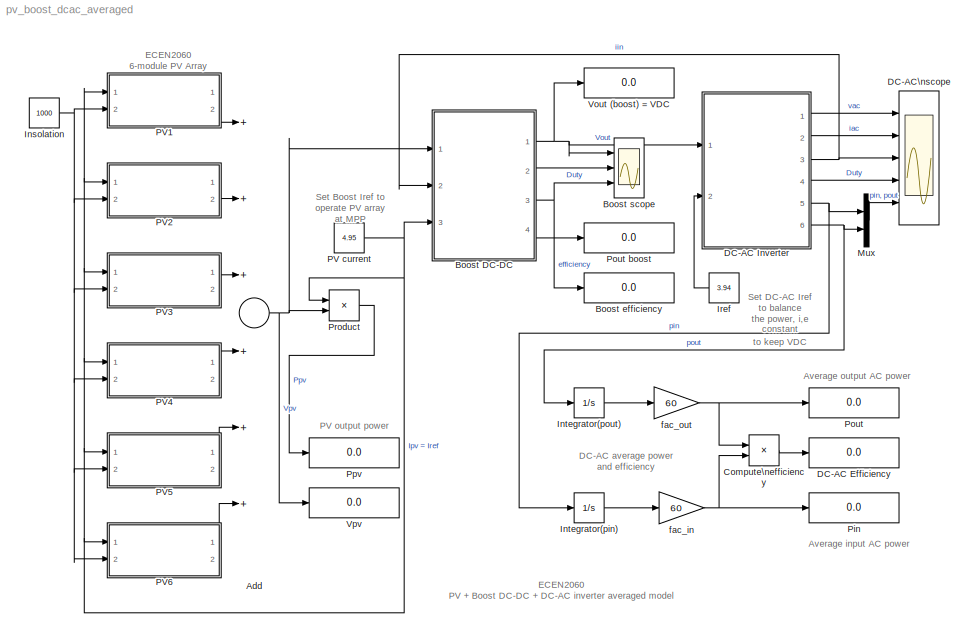
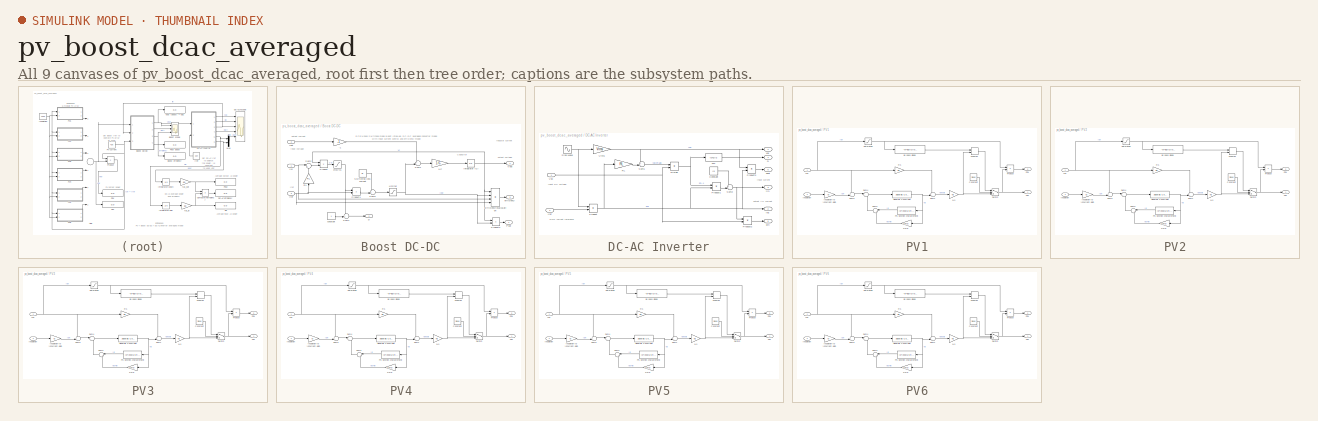
[diagram: thumbnail index - all 9 canvases of the model, root first then tree order]
MODEL pv_boost_dcac_averaged
KIND model
BLOCK [Sum] Add
  InputSameDT = off
  Inputs = ++++++
  OutDataTypeMode = Inherit via internal rule
  OutScaling = 2^-10
  Ports = [6, 1]
  SaturateOnIntegerOverflow = off
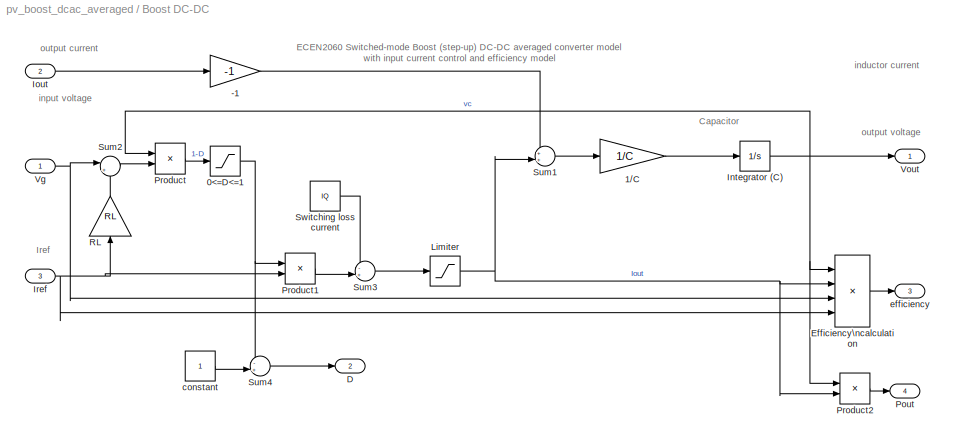
BLOCK [SubSystem] Boost DC-DC
  FunctionWithSeparateData = off
  MaskCallbackString = |||
  MaskDescription = Averaged model of a boost (step-up) DC-DC converter with input current control. Model includes losses due to input port resistance and output-port switching-loss current.
  MaskDisplay = text(0.5,0.9,'Boost','horizontalAlignment', 'center');\ntext(0.5,0.8,'DC-DC','horizontalAlignment', 'center');\ntext(0.5,0.7,'(averaged, C)','horizontalAlignment', 'center');\ntext(0.5,0.6,'current control','horizontalAlignment', 'center');
  MaskEnableString = on,on,on,on
  MaskHideContents = off
  MaskIconFrame = on
  MaskIconOpaque = off
  MaskIconRotate = none
  MaskIconUnits = normalized
  MaskPromptString = Capacitance|Initial capacitor voltage|Input port series resistance|Switching loss current
  MaskStyleString = edit,edit,edit,edit
  MaskTabNameString = ,,,
  MaskToolTipString = on,on,on,on
  MaskTunableValueString = on,on,on,on
  MaskValueString = 200e-6|200|0.5|0.03
  MaskVarAliasString = ,,,
  MaskVariables = C=@1;Vo=@2;RL=@3;IQ=@4;
  MaskVisibilityString = on,on,on,on
  MinAlgLoopOccurrences = off
  Ports = [3, 4]
  RTWSystemCode = Auto
BLOCK [Gain] Boost DC-DC/-1
  Gain = -1
  OutDataTypeMode = Inherit via internal rule
  ParameterDataTypeMode = Inherit via internal rule
  SaturateOnIntegerOverflow = off
BLOCK [Saturate] Boost DC-DC/0<=D<=1
  LowerLimit = 0
  UpperLimit = 1
BLOCK [Gain] Boost DC-DC/1//C
  Gain = 1/C
  OutDataTypeMode = Inherit via internal rule
  ParameterDataTypeMode = Inherit via internal rule
  SaturateOnIntegerOverflow = off
BLOCK [Outport] Boost DC-DC/D
  BusOutputAsStruct = off
  IconDisplay = Port number
  Port = 2
BLOCK [Product] Boost DC-DC/Efficiency\ncalculation
  InputSameDT = off
  Inputs = **//
  OutDataTypeMode = Inherit via internal rule
  Ports = [4, 1]
  SaturateOnIntegerOverflow = off
BLOCK [Integrator] Boost DC-DC/Integrator (C)
  IgnoreLimit = off
  InitialCondition = Vo
  Ports = [1, 1]
BLOCK [Inport] Boost DC-DC/Iout
  IconDisplay = Port number
  Port = 2
BLOCK [Inport] Boost DC-DC/Iref
  IconDisplay = Port number
  Port = 3
BLOCK [Saturate] Boost DC-DC/Limiter
  LowerLimit = 0
  UpperLimit = inf
BLOCK [Outport] Boost DC-DC/Pout
  BusOutputAsStruct = off
  IconDisplay = Port number
  Port = 4
BLOCK [Product] Boost DC-DC/Product
  InputSameDT = off
  Inputs = /*
  OutDataTypeMode = Inherit via internal rule
  Ports = [2, 1]
  SaturateOnIntegerOverflow = off
BLOCK [Product] Boost DC-DC/Product1
  InputSameDT = off
  Inputs = **
  OutDataTypeMode = Inherit via internal rule
  Ports = [2, 1]
  SaturateOnIntegerOverflow = off
BLOCK [Product] Boost DC-DC/Product2
  InputSameDT = off
  Inputs = **
  OutDataTypeMode = Inherit via internal rule
  Ports = [2, 1]
  SaturateOnIntegerOverflow = off
BLOCK [Gain] Boost DC-DC/RL
  Gain = RL
  OutDataTypeMode = Inherit via internal rule
  ParameterDataTypeMode = Inherit via internal rule
  SaturateOnIntegerOverflow = off
BLOCK [Sum] Boost DC-DC/Sum1
  IconShape = round
  InputSameDT = off
  Inputs = ++|
  OutDataTypeMode = Inherit via internal rule
  Ports = [2, 1]
  SaturateOnIntegerOverflow = off
BLOCK [Sum] Boost DC-DC/Sum2
  IconShape = round
  InputSameDT = off
  Inputs = |+-
  OutDataTypeMode = Inherit via internal rule
  Ports = [2, 1]
  SaturateOnIntegerOverflow = off
BLOCK [Sum] Boost DC-DC/Sum3
  IconShape = round
  InputSameDT = off
  Inputs = -+|
  OutDataTypeMode = Inherit via internal rule
  Ports = [2, 1]
  SaturateOnIntegerOverflow = off
BLOCK [Sum] Boost DC-DC/Sum4
  IconShape = round
  InputSameDT = off
  Inputs = -+|
  OutDataTypeMode = Inherit via internal rule
  Ports = [2, 1]
  SaturateOnIntegerOverflow = off
BLOCK [Constant] Boost DC-DC/Switching loss current
  ConRadixGroup = Use specified scaling
  FramePeriod = inf
  OutDataType = sfix(16)
  OutDataTypeMode = Inherit from 'Constant value'
  OutScaling = 2^0
  SampleTime = inf
  SamplingMode = Sample based
  Value = IQ
  VectorParams1D = on
BLOCK [Inport] Boost DC-DC/Vg
  IconDisplay = Port number
BLOCK [Outport] Boost DC-DC/Vout
  BusOutputAsStruct = off
  IconDisplay = Port number
BLOCK [Constant] Boost DC-DC/constant
  ConRadixGroup = Use specified scaling
  FramePeriod = inf
  OutDataType = sfix(16)
  OutDataTypeMode = Inherit from 'Constant value'
  OutScaling = 2^0
  SampleTime = inf
  SamplingMode = Sample based
  Value = 1
  VectorParams1D = on
BLOCK [Outport] Boost DC-DC/efficiency
  BusOutputAsStruct = off
  IconDisplay = Port number
  Port = 3
BLOCK [Display] Boost efficiency
  Decimation = 1
  Lockdown = off
  Ports = [1]
BLOCK [Scope] Boost scope
  DataFormat = StructureWithTime
  Floating = off
  LimitDataPoints = off
  NumInputPorts = 3
  Ports = [3]
  SampleTime = 0
  SaveName = ScopeData1
  TimeRange = 0.018
  YMax = 220~0.6000000000000001~0.967
  YMin = 180~0.4~0.963
  ZoomMode = yonly
BLOCK [Product] Compute\nefficiency
  InputSameDT = off
  Inputs = */
  OutDataTypeMode = Inherit via internal rule
  OutScaling = 2^-10
  Ports = [2, 1]
  RndMeth = Floor
  SaturateOnIntegerOverflow = off
BLOCK [Display] DC-AC Efficiency
  Decimation = 1
  Lockdown = off
  Ports = [1]
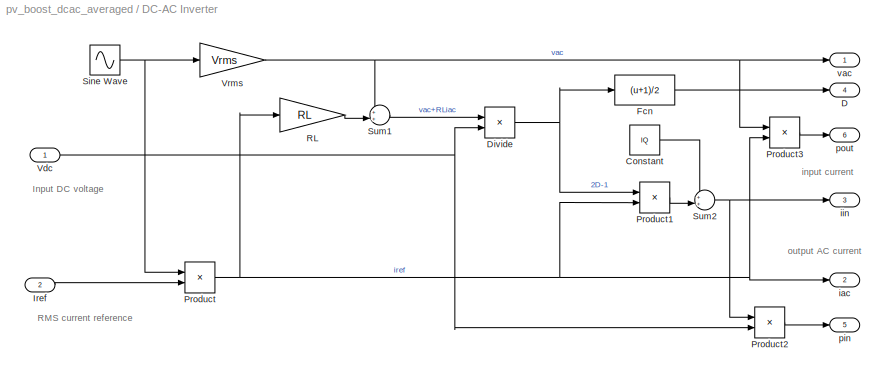
BLOCK [SubSystem] DC-AC Inverter
  FunctionWithSeparateData = off
  MaskCallbackString = |||
  MaskDescription = Averaged model of a switched-mode DC-AC inverter for single-phase grid-connected systems. Output current is in phase with the AC line voltage and has the RMS value set by the input reference Iref. Conduction losses are modeled by an output por series resistance. Switching losses are modeled by an input port current Isw.
  MaskDisplay = text(0.5,0.75,'DC-AC','horizontalAlignment', 'center');\ntext(0.5,0.6,'inverter','horizontalAlignment', 'center');\ntext(0.5,0.45,'(averaged)','horizontalAlignment', 'center');
  MaskEnableString = on,on,on,on
  MaskHideContents = off
  MaskIconFrame = on
  MaskIconOpaque = off
  MaskIconRotate = none
  MaskIconUnits = normalized
  MaskPromptString = AC line RMS voltage|AC line frequency|Output port series resistance|Switching loss current
  MaskStyleString = edit,edit,edit,edit
  MaskTabNameString = ,,,
  MaskToolTipString = on,on,on,on
  MaskTunableValueString = on,on,on,on
  MaskValueString = 120|60|0.8|0.04
  MaskVarAliasString = ,,,
  MaskVariables = Vrms=@1;f=@2;RL=@3;IQ=@4;
  MaskVisibilityString = on,on,on,on
  MinAlgLoopOccurrences = off
  Ports = [2, 6]
  RTWSystemCode = Auto
BLOCK [Constant] DC-AC Inverter/Constant
  ConRadixGroup = Use specified scaling
  FramePeriod = inf
  OutDataType = sfix(16)
  OutDataTypeMode = Inherit from 'Constant value'
  OutScaling = 2^0
  SampleTime = inf
  SamplingMode = Sample based
  Value = IQ
  VectorParams1D = on
BLOCK [Outport] DC-AC Inverter/D
  BusOutputAsStruct = off
  IconDisplay = Port number
  Port = 4
BLOCK [Product] DC-AC Inverter/Divide
  InputSameDT = off
  Inputs = */
  OutDataTypeMode = Inherit via internal rule
  OutScaling = 2^-10
  Ports = [2, 1]
  RndMeth = Floor
  SaturateOnIntegerOverflow = off
BLOCK [Fcn] DC-AC Inverter/Fcn
  Expr = (u+1)/2
BLOCK [Inport] DC-AC Inverter/Iref
  IconDisplay = Port number
  Port = 2
BLOCK [Product] DC-AC Inverter/Product
  InputSameDT = off
  OutDataTypeMode = Inherit via internal rule
  Ports = [2, 1]
  SaturateOnIntegerOverflow = off
BLOCK [Product] DC-AC Inverter/Product1
  InputSameDT = off
  OutDataTypeMode = Inherit via internal rule
  Ports = [2, 1]
  SaturateOnIntegerOverflow = off
BLOCK [Product] DC-AC Inverter/Product2
  InputSameDT = off
  OutDataTypeMode = Inherit via internal rule
  Ports = [2, 1]
  SaturateOnIntegerOverflow = off
BLOCK [Product] DC-AC Inverter/Product3
  InputSameDT = off
  OutDataTypeMode = Inherit via internal rule
  Ports = [2, 1]
  SaturateOnIntegerOverflow = off
BLOCK [Gain] DC-AC Inverter/RL
  Gain = RL
  OutDataTypeMode = Inherit via internal rule
  ParameterDataTypeMode = Inherit via internal rule
  SaturateOnIntegerOverflow = off
BLOCK [Sin] DC-AC Inverter/Sine Wave
  Amplitude = 1*sqrt(2)
  Frequency = 2*pi*f
  Ports = [0, 1]
  SampleTime = 0
  SineType = Time based
BLOCK [Sum] DC-AC Inverter/Sum1
  IconShape = round
  InputSameDT = off
  Inputs = ++|
  OutDataTypeMode = Inherit via internal rule
  Ports = [2, 1]
  SaturateOnIntegerOverflow = off
BLOCK [Sum] DC-AC Inverter/Sum2
  IconShape = round
  InputSameDT = off
  Inputs = ++|
  OutDataTypeMode = Inherit via internal rule
  Ports = [2, 1]
  SaturateOnIntegerOverflow = off
BLOCK [Inport] DC-AC Inverter/Vdc
  IconDisplay = Port number
BLOCK [Gain] DC-AC Inverter/Vrms
  Gain = Vrms
  OutDataTypeMode = Inherit via internal rule
  ParameterDataTypeMode = Inherit via internal rule
  SaturateOnIntegerOverflow = off
BLOCK [Outport] DC-AC Inverter/iac
  BusOutputAsStruct = off
  IconDisplay = Port number
  Port = 2
BLOCK [Outport] DC-AC Inverter/iin
  BusOutputAsStruct = off
  IconDisplay = Port number
  Port = 3
BLOCK [Outport] DC-AC Inverter/pin
  BusOutputAsStruct = off
  IconDisplay = Port number
  Port = 5
BLOCK [Outport] DC-AC Inverter/pout
  BusOutputAsStruct = off
  IconDisplay = Port number
  Port = 6
BLOCK [Outport] DC-AC Inverter/vac
  BusOutputAsStruct = off
  IconDisplay = Port number
BLOCK [Scope] DC-AC\nscope
  DataFormat = StructureWithTime
  Floating = off
  LimitDataPoints = off
  NumInputPorts = 5
  Ports = [5]
  SampleTime = 0
  TimeRange = 0.018
  YMax = 200~10~5~1~1000
  YMin = -200~-10~0~0~0
  ZoomMode = xonly
BLOCK [Constant] Insolation
  ConRadixGroup = Use specified scaling
  FramePeriod = inf
  OutDataType = sfix(16)
  OutDataTypeMode = Inherit from 'Constant value'
  OutScaling = 2^0
  SampleTime = inf
  SamplingMode = Sample based
  Value = 1000
  VectorParams1D = on
BLOCK [Integrator] Integrator(pin)
  IgnoreLimit = off
  Ports = [1, 1]
BLOCK [Integrator] Integrator(pout)
  IgnoreLimit = off
  Ports = [1, 1]
BLOCK [Constant] Iref
  ConRadixGroup = Use specified scaling
  FramePeriod = inf
  OutDataType = sfix(16)
  OutDataTypeMode = Inherit from 'Constant value'
  OutScaling = 2^0
  SampleTime = inf
  SamplingMode = Sample based
  Value = 3.94
  VectorParams1D = on
BLOCK [Mux] Mux
  DisplayOption = bar
  Inputs = 2
  Ports = [2, 1]
BLOCK [Constant] PV current
  ConRadixGroup = Use specified scaling
  FramePeriod = inf
  OutDataType = sfix(16)
  OutDataTypeMode = Inherit from 'Constant value'
  OutScaling = 2^0
  SampleTime = inf
  SamplingMode = Sample based
  Value = 4.95
  VectorParams1D = on
BLOCK [SubSystem] PV1
  FunctionWithSeparateData = off
  MaskCallbackString = ||||
  MaskDescription = PV module model based on module data-sheet parameters. This model has Ipv input, which is suitable for series connections. Limitations: no temperature dependance, static model
  MaskDisplay = plot([0.3 0.4],[0.4 0.8]);\nplot([0.4 0.5],[0.4 0.8]);\nplot([0.5 0.6],[0.4 0.8]);\nplot([0.6 0.7],[0.4 0.8]);\nplot([0.3 0.6],[0.4 0.4]);\nplot([0.325 0.625],[0.5 0.5]);\nplot([0.35 0.65],[0.6 0.6]);\nplot([0.375 0.675],[0.7 0.7]);\nplot([0.4 0.7],[0.8 0.8]);\ntext(0.5,0.9,'PV module (I)','horizontalAlignment', 'center');\n  <repeated x6 — deduplicated; at blocks: PV1, PV2, PV3, PV4, PV5, PV6>
  MaskEnableString = on,on,on,on,on
  MaskHideContents = off
  MaskIconFrame = on
  MaskIconOpaque = off
  MaskIconRotate = none
  MaskIconUnits = normalized
  MaskInitialization = % calculation of PV module parameters\n% limitation: constant temperature\nNs = round(Voc/0.61); % default number of cells in series\nVt = 26e-3; % thermal voltage\nG = Isc/1000; % irradiation to short-circuit current gain\nVmpc = Vr/Ns; % cell voltage at rated Pmax\nVocc = Voc/Ns; % cell open-circuit voltage\nRmpp = Vmpc/Ir; % cell load resistance at Pmax\n%\nRp = 100*Vocc/Isc; % initial value fo...<+575ch>  <repeated x6 — deduplicated; at blocks: PV1, PV2, PV3, PV4, PV5, PV6>
  MaskPromptString = Short-circuit current|Open-circuit voltage|Current at Pmax|Voltage at Pmax|By-pass diode?
  MaskStyleString = edit,edit,edit,edit,checkbox
  MaskTabNameString = ,,,,
  MaskToolTipString = on,on,on,on,on
  MaskTunableValueString = on,on,on,on,on
  MaskValueString = 5.45|22.2|4.95|17.2|on
  MaskVarAliasString = ,,,,
  MaskVariables = Isc=@1;Voc=@2;Ir=@3;Vr=@4;Diode=@5;
  MaskVisibilityString = on,on,on,on,on
  MinAlgLoopOccurrences = off
  Ports = [2, 2]
  RTWSystemCode = Auto
BLOCK [Gain] PV1/1//Rp
  Gain = 1/Rp
  OutDataTypeMode = Inherit via internal rule
  ParameterDataTypeMode = Inherit via internal rule
  SaturateOnIntegerOverflow = off
BLOCK [Reference] PV1/Algebraic Constraint  REF=simulink/Math\nOperations/Algebraic Constraint
  FunctionWithSeparateData = off
  Ports = [1, 1]
  RTWMemSecDataConstants = Inherit from model
  RTWMemSecDataInternal = Inherit from model
  RTWMemSecDataParameters = Inherit from model
  RTWMemSecFuncExecute = Inherit from model
  RTWMemSecFuncInitTerm = Inherit from model
  ShowPortLabels = on
  SourceBlock = simulink/Math\nOperations/Algebraic Constraint
  SourceType = Algebraic Constraint
  SystemSampleTime = -1
  z0 = 0
BLOCK [Fcn] PV1/By-pass diode
  Expr = -Vt*log((u/Io)+1)
BLOCK [Constant] PV1/Constant
  ConRadixGroup = Use specified scaling
  FramePeriod = inf
  OutDataType = sfix(16)
  OutDataTypeMode = Inherit from 'Constant value'
  OutScaling = 2^0
  SampleTime = inf
  SamplingMode = Sample based
  Value = Diode
  VectorParams1D = on
BLOCK [Inport] PV1/Insolation
  IconDisplay = Port number
  Port = 2
BLOCK [Gain] PV1/Insolation to \ncurrent gain
  Gain = G
  OutDataTypeMode = Inherit via internal rule
  ParameterDataTypeMode = Inherit via internal rule
  SaturateOnIntegerOverflow = off
BLOCK [Inport] PV1/Ipv
  IconDisplay = Port number
BLOCK [MinMax] PV1/MinMax
  Function = max
  InputSameDT = off
  Inputs = 2
  Ports = [2, 1]
  SaturateOnIntegerOverflow = off
BLOCK [Gain] PV1/Ns
  Gain = Ns
  OutDataTypeMode = Inherit via internal rule
  ParameterDataTypeMode = Inherit via internal rule
  SaturateOnIntegerOverflow = off
BLOCK [Fcn] PV1/PN-junction characteristic
  Expr = Io*(exp(u/Vt)-1)
BLOCK [Outport] PV1/Ppv
  BusOutputAsStruct = off
  IconDisplay = Port number
  Port = 2
BLOCK [Product] PV1/Product
  InputSameDT = off
  OutDataTypeMode = Inherit via internal rule
  Ports = [2, 1]
  SaturateOnIntegerOverflow = off
BLOCK [Gain] PV1/Rs
  Gain = Rs
  OutDataTypeMode = Inherit via internal rule
  ParameterDataTypeMode = Inherit via internal rule
  SaturateOnIntegerOverflow = off
BLOCK [Saturate] PV1/Saturation
  LowerLimit = 0
  UpperLimit = inf
BLOCK [Sum] PV1/Sum1
  IconShape = round
  InputSameDT = off
  Inputs = -+|
  OutDataTypeMode = Inherit via internal rule
  Ports = [2, 1]
  SaturateOnIntegerOverflow = off
BLOCK [Sum] PV1/Sum2
  IconShape = round
  InputSameDT = off
  Inputs = |++
  OutDataTypeMode = Inherit via internal rule
  Ports = [2, 1]
  SaturateOnIntegerOverflow = off
BLOCK [Sum] PV1/Sum3
  IconShape = round
  InputSameDT = off
  Inputs = -+|
  OutDataTypeMode = Inherit via internal rule
  Ports = [2, 1]
  SaturateOnIntegerOverflow = off
BLOCK [Sum] PV1/Sum4
  IconShape = round
  InputSameDT = off
  Inputs = |+-
  OutDataTypeMode = Inherit via internal rule
  Ports = [2, 1]
  SaturateOnIntegerOverflow = off
BLOCK [Switch] PV1/Switch
  Criteria = u2 > Threshold
  InputSameDT = off
  SaturateOnIntegerOverflow = off
BLOCK [Outport] PV1/Vpv
  BusOutputAsStruct = off
  IconDisplay = Port number
BLOCK [SubSystem] PV2
  FunctionWithSeparateData = off
  MaskCallbackString = ||||
  MaskDescription = PV module model based on module data-sheet parameters. This model has Ipv input, which is suitable for series connections. Limitations: no temperature dependance, static model
  MaskEnableString = on,on,on,on,on
  MaskHideContents = off
  MaskIconFrame = on
  MaskIconOpaque = off
  MaskIconRotate = none
  MaskIconUnits = normalized
  MaskPromptString = Short-circuit current|Open-circuit voltage|Current at Pmax|Voltage at Pmax|By-pass diode?
  MaskStyleString = edit,edit,edit,edit,checkbox
  MaskTabNameString = ,,,,
  MaskToolTipString = on,on,on,on,on
  MaskTunableValueString = on,on,on,on,on
  MaskValueString = 5.45|22.2|4.95|17.2|on
  MaskVarAliasString = ,,,,
  MaskVariables = Isc=@1;Voc=@2;Ir=@3;Vr=@4;Diode=@5;
  MaskVisibilityString = on,on,on,on,on
  MinAlgLoopOccurrences = off
  Ports = [2, 2]
  RTWSystemCode = Auto
BLOCK [Gain] PV2/1//Rp
  Gain = 1/Rp
  OutDataTypeMode = Inherit via internal rule
  ParameterDataTypeMode = Inherit via internal rule
  SaturateOnIntegerOverflow = off
BLOCK [Reference] PV2/Algebraic Constraint  REF=simulink/Math\nOperations/Algebraic Constraint
  FunctionWithSeparateData = off
  Ports = [1, 1]
  RTWMemSecDataConstants = Inherit from model
  RTWMemSecDataInternal = Inherit from model
  RTWMemSecDataParameters = Inherit from model
  RTWMemSecFuncExecute = Inherit from model
  RTWMemSecFuncInitTerm = Inherit from model
  ShowPortLabels = on
  SourceBlock = simulink/Math\nOperations/Algebraic Constraint
  SourceType = Algebraic Constraint
  SystemSampleTime = -1
  z0 = 0
BLOCK [Fcn] PV2/By-pass diode
  Expr = -Vt*log((u/Io)+1)
BLOCK [Constant] PV2/Constant
  ConRadixGroup = Use specified scaling
  FramePeriod = inf
  OutDataType = sfix(16)
  OutDataTypeMode = Inherit from 'Constant value'
  OutScaling = 2^0
  SampleTime = inf
  SamplingMode = Sample based
  Value = Diode
  VectorParams1D = on
BLOCK [Inport] PV2/Insolation
  IconDisplay = Port number
  Port = 2
BLOCK [Gain] PV2/Insolation to \ncurrent gain
  Gain = G
  OutDataTypeMode = Inherit via internal rule
  ParameterDataTypeMode = Inherit via internal rule
  SaturateOnIntegerOverflow = off
BLOCK [Inport] PV2/Ipv
  IconDisplay = Port number
BLOCK [MinMax] PV2/MinMax
  Function = max
  InputSameDT = off
  Inputs = 2
  Ports = [2, 1]
  SaturateOnIntegerOverflow = off
BLOCK [Gain] PV2/Ns
  Gain = Ns
  OutDataTypeMode = Inherit via internal rule
  ParameterDataTypeMode = Inherit via internal rule
  SaturateOnIntegerOverflow = off
BLOCK [Fcn] PV2/PN-junction characteristic
  Expr = Io*(exp(u/Vt)-1)
BLOCK [Outport] PV2/Ppv
  BusOutputAsStruct = off
  IconDisplay = Port number
  Port = 2
BLOCK [Product] PV2/Product
  InputSameDT = off
  OutDataTypeMode = Inherit via internal rule
  Ports = [2, 1]
  SaturateOnIntegerOverflow = off
BLOCK [Gain] PV2/Rs
  Gain = Rs
  OutDataTypeMode = Inherit via internal rule
  ParameterDataTypeMode = Inherit via internal rule
  SaturateOnIntegerOverflow = off
BLOCK [Saturate] PV2/Saturation
  LowerLimit = 0
  UpperLimit = inf
BLOCK [Sum] PV2/Sum1
  IconShape = round
  InputSameDT = off
  Inputs = -+|
  OutDataTypeMode = Inherit via internal rule
  Ports = [2, 1]
  SaturateOnIntegerOverflow = off
BLOCK [Sum] PV2/Sum2
  IconShape = round
  InputSameDT = off
  Inputs = |++
  OutDataTypeMode = Inherit via internal rule
  Ports = [2, 1]
  SaturateOnIntegerOverflow = off
BLOCK [Sum] PV2/Sum3
  IconShape = round
  InputSameDT = off
  Inputs = -+|
  OutDataTypeMode = Inherit via internal rule
  Ports = [2, 1]
  SaturateOnIntegerOverflow = off
BLOCK [Sum] PV2/Sum4
  IconShape = round
  InputSameDT = off
  Inputs = |+-
  OutDataTypeMode = Inherit via internal rule
  Ports = [2, 1]
  SaturateOnIntegerOverflow = off
BLOCK [Switch] PV2/Switch
  Criteria = u2 > Threshold
  InputSameDT = off
  SaturateOnIntegerOverflow = off
BLOCK [Outport] PV2/Vpv
  BusOutputAsStruct = off
  IconDisplay = Port number
BLOCK [SubSystem] PV3
  FunctionWithSeparateData = off
  MaskCallbackString = ||||
  MaskDescription = PV module model based on module data-sheet parameters. This model has Ipv input, which is suitable for series connections. Limitations: no temperature dependance, static model
  MaskEnableString = on,on,on,on,on
  MaskHideContents = off
  MaskIconFrame = on
  MaskIconOpaque = off
  MaskIconRotate = none
  MaskIconUnits = normalized
  MaskPromptString = Short-circuit current|Open-circuit voltage|Current at Pmax|Voltage at Pmax|By-pass diode?
  MaskStyleString = edit,edit,edit,edit,checkbox
  MaskTabNameString = ,,,,
  MaskToolTipString = on,on,on,on,on
  MaskTunableValueString = on,on,on,on,on
  MaskValueString = 5.45|22.2|4.95|17.2|on
  MaskVarAliasString = ,,,,
  MaskVariables = Isc=@1;Voc=@2;Ir=@3;Vr=@4;Diode=@5;
  MaskVisibilityString = on,on,on,on,on
  MinAlgLoopOccurrences = off
  Ports = [2, 2]
  RTWSystemCode = Auto
BLOCK [Gain] PV3/1//Rp
  Gain = 1/Rp
  OutDataTypeMode = Inherit via internal rule
  ParameterDataTypeMode = Inherit via internal rule
  SaturateOnIntegerOverflow = off
BLOCK [Reference] PV3/Algebraic Constraint  REF=simulink/Math\nOperations/Algebraic Constraint
  FunctionWithSeparateData = off
  Ports = [1, 1]
  RTWMemSecDataConstants = Inherit from model
  RTWMemSecDataInternal = Inherit from model
  RTWMemSecDataParameters = Inherit from model
  RTWMemSecFuncExecute = Inherit from model
  RTWMemSecFuncInitTerm = Inherit from model
  ShowPortLabels = on
  SourceBlock = simulink/Math\nOperations/Algebraic Constraint
  SourceType = Algebraic Constraint
  SystemSampleTime = -1
  z0 = 0
BLOCK [Fcn] PV3/By-pass diode
  Expr = -Vt*log((u/Io)+1)
BLOCK [Constant] PV3/Constant
  ConRadixGroup = Use specified scaling
  FramePeriod = inf
  OutDataType = sfix(16)
  OutDataTypeMode = Inherit from 'Constant value'
  OutScaling = 2^0
  SampleTime = inf
  SamplingMode = Sample based
  Value = Diode
  VectorParams1D = on
BLOCK [Inport] PV3/Insolation
  IconDisplay = Port number
  Port = 2
BLOCK [Gain] PV3/Insolation to \ncurrent gain
  Gain = G
  OutDataTypeMode = Inherit via internal rule
  ParameterDataTypeMode = Inherit via internal rule
  SaturateOnIntegerOverflow = off
BLOCK [Inport] PV3/Ipv
  IconDisplay = Port number
BLOCK [MinMax] PV3/MinMax
  Function = max
  InputSameDT = off
  Inputs = 2
  Ports = [2, 1]
  SaturateOnIntegerOverflow = off
BLOCK [Gain] PV3/Ns
  Gain = Ns
  OutDataTypeMode = Inherit via internal rule
  ParameterDataTypeMode = Inherit via internal rule
  SaturateOnIntegerOverflow = off
BLOCK [Fcn] PV3/PN-junction characteristic
  Expr = Io*(exp(u/Vt)-1)
BLOCK [Outport] PV3/Ppv
  BusOutputAsStruct = off
  IconDisplay = Port number
  Port = 2
BLOCK [Product] PV3/Product
  InputSameDT = off
  OutDataTypeMode = Inherit via internal rule
  Ports = [2, 1]
  SaturateOnIntegerOverflow = off
BLOCK [Gain] PV3/Rs
  Gain = Rs
  OutDataTypeMode = Inherit via internal rule
  ParameterDataTypeMode = Inherit via internal rule
  SaturateOnIntegerOverflow = off
BLOCK [Saturate] PV3/Saturation
  LowerLimit = 0
  UpperLimit = inf
BLOCK [Sum] PV3/Sum1
  IconShape = round
  InputSameDT = off
  Inputs = -+|
  OutDataTypeMode = Inherit via internal rule
  Ports = [2, 1]
  SaturateOnIntegerOverflow = off
BLOCK [Sum] PV3/Sum2
  IconShape = round
  InputSameDT = off
  Inputs = |++
  OutDataTypeMode = Inherit via internal rule
  Ports = [2, 1]
  SaturateOnIntegerOverflow = off
BLOCK [Sum] PV3/Sum3
  IconShape = round
  InputSameDT = off
  Inputs = -+|
  OutDataTypeMode = Inherit via internal rule
  Ports = [2, 1]
  SaturateOnIntegerOverflow = off
BLOCK [Sum] PV3/Sum4
  IconShape = round
  InputSameDT = off
  Inputs = |+-
  OutDataTypeMode = Inherit via internal rule
  Ports = [2, 1]
  SaturateOnIntegerOverflow = off
BLOCK [Switch] PV3/Switch
  Criteria = u2 > Threshold
  InputSameDT = off
  SaturateOnIntegerOverflow = off
BLOCK [Outport] PV3/Vpv
  BusOutputAsStruct = off
  IconDisplay = Port number
BLOCK [SubSystem] PV4
  FunctionWithSeparateData = off
  MaskCallbackString = ||||
  MaskDescription = PV module model based on module data-sheet parameters. This model has Ipv input, which is suitable for series connections. Limitations: no temperature dependance, static model
  MaskEnableString = on,on,on,on,on
  MaskHideContents = off
  MaskIconFrame = on
  MaskIconOpaque = off
  MaskIconRotate = none
  MaskIconUnits = normalized
  MaskPromptString = Short-circuit current|Open-circuit voltage|Current at Pmax|Voltage at Pmax|By-pass diode?
  MaskStyleString = edit,edit,edit,edit,checkbox
  MaskTabNameString = ,,,,
  MaskToolTipString = on,on,on,on,on
  MaskTunableValueString = on,on,on,on,on
  MaskValueString = 5.45|22.2|4.95|17.2|on
  MaskVarAliasString = ,,,,
  MaskVariables = Isc=@1;Voc=@2;Ir=@3;Vr=@4;Diode=@5;
  MaskVisibilityString = on,on,on,on,on
  MinAlgLoopOccurrences = off
  Ports = [2, 2]
  RTWSystemCode = Auto
BLOCK [Gain] PV4/1//Rp
  Gain = 1/Rp
  OutDataTypeMode = Inherit via internal rule
  ParameterDataTypeMode = Inherit via internal rule
  SaturateOnIntegerOverflow = off
BLOCK [Reference] PV4/Algebraic Constraint  REF=simulink/Math\nOperations/Algebraic Constraint
  FunctionWithSeparateData = off
  Ports = [1, 1]
  RTWMemSecDataConstants = Inherit from model
  RTWMemSecDataInternal = Inherit from model
  RTWMemSecDataParameters = Inherit from model
  RTWMemSecFuncExecute = Inherit from model
  RTWMemSecFuncInitTerm = Inherit from model
  ShowPortLabels = on
  SourceBlock = simulink/Math\nOperations/Algebraic Constraint
  SourceType = Algebraic Constraint
  SystemSampleTime = -1
  z0 = 0
BLOCK [Fcn] PV4/By-pass diode
  Expr = -Vt*log((u/Io)+1)
BLOCK [Constant] PV4/Constant
  ConRadixGroup = Use specified scaling
  FramePeriod = inf
  OutDataType = sfix(16)
  OutDataTypeMode = Inherit from 'Constant value'
  OutScaling = 2^0
  SampleTime = inf
  SamplingMode = Sample based
  Value = Diode
  VectorParams1D = on
BLOCK [Inport] PV4/Insolation
  IconDisplay = Port number
  Port = 2
BLOCK [Gain] PV4/Insolation to \ncurrent gain
  Gain = G
  OutDataTypeMode = Inherit via internal rule
  ParameterDataTypeMode = Inherit via internal rule
  SaturateOnIntegerOverflow = off
BLOCK [Inport] PV4/Ipv
  IconDisplay = Port number
BLOCK [MinMax] PV4/MinMax
  Function = max
  InputSameDT = off
  Inputs = 2
  Ports = [2, 1]
  SaturateOnIntegerOverflow = off
BLOCK [Gain] PV4/Ns
  Gain = Ns
  OutDataTypeMode = Inherit via internal rule
  ParameterDataTypeMode = Inherit via internal rule
  SaturateOnIntegerOverflow = off
BLOCK [Fcn] PV4/PN-junction characteristic
  Expr = Io*(exp(u/Vt)-1)
BLOCK [Outport] PV4/Ppv
  BusOutputAsStruct = off
  IconDisplay = Port number
  Port = 2
BLOCK [Product] PV4/Product
  InputSameDT = off
  OutDataTypeMode = Inherit via internal rule
  Ports = [2, 1]
  SaturateOnIntegerOverflow = off
BLOCK [Gain] PV4/Rs
  Gain = Rs
  OutDataTypeMode = Inherit via internal rule
  ParameterDataTypeMode = Inherit via internal rule
  SaturateOnIntegerOverflow = off
BLOCK [Saturate] PV4/Saturation
  LowerLimit = 0
  UpperLimit = inf
BLOCK [Sum] PV4/Sum1
  IconShape = round
  InputSameDT = off
  Inputs = -+|
  OutDataTypeMode = Inherit via internal rule
  Ports = [2, 1]
  SaturateOnIntegerOverflow = off
BLOCK [Sum] PV4/Sum2
  IconShape = round
  InputSameDT = off
  Inputs = |++
  OutDataTypeMode = Inherit via internal rule
  Ports = [2, 1]
  SaturateOnIntegerOverflow = off
BLOCK [Sum] PV4/Sum3
  IconShape = round
  InputSameDT = off
  Inputs = -+|
  OutDataTypeMode = Inherit via internal rule
  Ports = [2, 1]
  SaturateOnIntegerOverflow = off
BLOCK [Sum] PV4/Sum4
  IconShape = round
  InputSameDT = off
  Inputs = |+-
  OutDataTypeMode = Inherit via internal rule
  Ports = [2, 1]
  SaturateOnIntegerOverflow = off
BLOCK [Switch] PV4/Switch
  Criteria = u2 > Threshold
  InputSameDT = off
  SaturateOnIntegerOverflow = off
BLOCK [Outport] PV4/Vpv
  BusOutputAsStruct = off
  IconDisplay = Port number
BLOCK [SubSystem] PV5
  FunctionWithSeparateData = off
  MaskCallbackString = ||||
  MaskDescription = PV module model based on module data-sheet parameters. This model has Ipv input, which is suitable for series connections. Limitations: no temperature dependance, static model
  MaskEnableString = on,on,on,on,on
  MaskHideContents = off
  MaskIconFrame = on
  MaskIconOpaque = off
  MaskIconRotate = none
  MaskIconUnits = normalized
  MaskPromptString = Short-circuit current|Open-circuit voltage|Current at Pmax|Voltage at Pmax|By-pass diode?
  MaskStyleString = edit,edit,edit,edit,checkbox
  MaskTabNameString = ,,,,
  MaskToolTipString = on,on,on,on,on
  MaskTunableValueString = on,on,on,on,on
  MaskValueString = 5.45|22.2|4.95|17.2|on
  MaskVarAliasString = ,,,,
  MaskVariables = Isc=@1;Voc=@2;Ir=@3;Vr=@4;Diode=@5;
  MaskVisibilityString = on,on,on,on,on
  MinAlgLoopOccurrences = off
  Ports = [2, 2]
  RTWSystemCode = Auto
BLOCK [Gain] PV5/1//Rp
  Gain = 1/Rp
  OutDataTypeMode = Inherit via internal rule
  ParameterDataTypeMode = Inherit via internal rule
  SaturateOnIntegerOverflow = off
BLOCK [Reference] PV5/Algebraic Constraint  REF=simulink/Math\nOperations/Algebraic Constraint
  FunctionWithSeparateData = off
  Ports = [1, 1]
  RTWMemSecDataConstants = Inherit from model
  RTWMemSecDataInternal = Inherit from model
  RTWMemSecDataParameters = Inherit from model
  RTWMemSecFuncExecute = Inherit from model
  RTWMemSecFuncInitTerm = Inherit from model
  ShowPortLabels = on
  SourceBlock = simulink/Math\nOperations/Algebraic Constraint
  SourceType = Algebraic Constraint
  SystemSampleTime = -1
  z0 = 0
BLOCK [Fcn] PV5/By-pass diode
  Expr = -Vt*log((u/Io)+1)
BLOCK [Constant] PV5/Constant
  ConRadixGroup = Use specified scaling
  FramePeriod = inf
  OutDataType = sfix(16)
  OutDataTypeMode = Inherit from 'Constant value'
  OutScaling = 2^0
  SampleTime = inf
  SamplingMode = Sample based
  Value = Diode
  VectorParams1D = on
BLOCK [Inport] PV5/Insolation
  IconDisplay = Port number
  Port = 2
BLOCK [Gain] PV5/Insolation to \ncurrent gain
  Gain = G
  OutDataTypeMode = Inherit via internal rule
  ParameterDataTypeMode = Inherit via internal rule
  SaturateOnIntegerOverflow = off
BLOCK [Inport] PV5/Ipv
  IconDisplay = Port number
BLOCK [MinMax] PV5/MinMax
  Function = max
  InputSameDT = off
  Inputs = 2
  Ports = [2, 1]
  SaturateOnIntegerOverflow = off
BLOCK [Gain] PV5/Ns
  Gain = Ns
  OutDataTypeMode = Inherit via internal rule
  ParameterDataTypeMode = Inherit via internal rule
  SaturateOnIntegerOverflow = off
BLOCK [Fcn] PV5/PN-junction characteristic
  Expr = Io*(exp(u/Vt)-1)
BLOCK [Outport] PV5/Ppv
  BusOutputAsStruct = off
  IconDisplay = Port number
  Port = 2
BLOCK [Product] PV5/Product
  InputSameDT = off
  OutDataTypeMode = Inherit via internal rule
  Ports = [2, 1]
  SaturateOnIntegerOverflow = off
BLOCK [Gain] PV5/Rs
  Gain = Rs
  OutDataTypeMode = Inherit via internal rule
  ParameterDataTypeMode = Inherit via internal rule
  SaturateOnIntegerOverflow = off
BLOCK [Saturate] PV5/Saturation
  LowerLimit = 0
  UpperLimit = inf
BLOCK [Sum] PV5/Sum1
  IconShape = round
  InputSameDT = off
  Inputs = -+|
  OutDataTypeMode = Inherit via internal rule
  Ports = [2, 1]
  SaturateOnIntegerOverflow = off
BLOCK [Sum] PV5/Sum2
  IconShape = round
  InputSameDT = off
  Inputs = |++
  OutDataTypeMode = Inherit via internal rule
  Ports = [2, 1]
  SaturateOnIntegerOverflow = off
BLOCK [Sum] PV5/Sum3
  IconShape = round
  InputSameDT = off
  Inputs = -+|
  OutDataTypeMode = Inherit via internal rule
  Ports = [2, 1]
  SaturateOnIntegerOverflow = off
BLOCK [Sum] PV5/Sum4
  IconShape = round
  InputSameDT = off
  Inputs = |+-
  OutDataTypeMode = Inherit via internal rule
  Ports = [2, 1]
  SaturateOnIntegerOverflow = off
BLOCK [Switch] PV5/Switch
  Criteria = u2 > Threshold
  InputSameDT = off
  SaturateOnIntegerOverflow = off
BLOCK [Outport] PV5/Vpv
  BusOutputAsStruct = off
  IconDisplay = Port number
BLOCK [SubSystem] PV6
  FunctionWithSeparateData = off
  MaskCallbackString = ||||
  MaskDescription = PV module model based on module data-sheet parameters. This model has Ipv input, which is suitable for series connections. Limitations: no temperature dependance, static model
  MaskEnableString = on,on,on,on,on
  MaskHideContents = off
  MaskIconFrame = on
  MaskIconOpaque = off
  MaskIconRotate = none
  MaskIconUnits = normalized
  MaskPromptString = Short-circuit current|Open-circuit voltage|Current at Pmax|Voltage at Pmax|By-pass diode?
  MaskStyleString = edit,edit,edit,edit,checkbox
  MaskTabNameString = ,,,,
  MaskToolTipString = on,on,on,on,on
  MaskTunableValueString = on,on,on,on,on
  MaskValueString = 5.45|22.2|4.95|17.2|on
  MaskVarAliasString = ,,,,
  MaskVariables = Isc=@1;Voc=@2;Ir=@3;Vr=@4;Diode=@5;
  MaskVisibilityString = on,on,on,on,on
  MinAlgLoopOccurrences = off
  Ports = [2, 2]
  RTWSystemCode = Auto
BLOCK [Gain] PV6/1//Rp
  Gain = 1/Rp
  OutDataTypeMode = Inherit via internal rule
  ParameterDataTypeMode = Inherit via internal rule
  SaturateOnIntegerOverflow = off
BLOCK [Reference] PV6/Algebraic Constraint  REF=simulink/Math\nOperations/Algebraic Constraint
  FunctionWithSeparateData = off
  Ports = [1, 1]
  RTWMemSecDataConstants = Inherit from model
  RTWMemSecDataInternal = Inherit from model
  RTWMemSecDataParameters = Inherit from model
  RTWMemSecFuncExecute = Inherit from model
  RTWMemSecFuncInitTerm = Inherit from model
  ShowPortLabels = on
  SourceBlock = simulink/Math\nOperations/Algebraic Constraint
  SourceType = Algebraic Constraint
  SystemSampleTime = -1
  z0 = 0
BLOCK [Fcn] PV6/By-pass diode
  Expr = -Vt*log((u/Io)+1)
BLOCK [Constant] PV6/Constant
  ConRadixGroup = Use specified scaling
  FramePeriod = inf
  OutDataType = sfix(16)
  OutDataTypeMode = Inherit from 'Constant value'
  OutScaling = 2^0
  SampleTime = inf
  SamplingMode = Sample based
  Value = Diode
  VectorParams1D = on
BLOCK [Inport] PV6/Insolation
  IconDisplay = Port number
  Port = 2
BLOCK [Gain] PV6/Insolation to \ncurrent gain
  Gain = G
  OutDataTypeMode = Inherit via internal rule
  ParameterDataTypeMode = Inherit via internal rule
  SaturateOnIntegerOverflow = off
BLOCK [Inport] PV6/Ipv
  IconDisplay = Port number
BLOCK [MinMax] PV6/MinMax
  Function = max
  InputSameDT = off
  Inputs = 2
  Ports = [2, 1]
  SaturateOnIntegerOverflow = off
BLOCK [Gain] PV6/Ns
  Gain = Ns
  OutDataTypeMode = Inherit via internal rule
  ParameterDataTypeMode = Inherit via internal rule
  SaturateOnIntegerOverflow = off
BLOCK [Fcn] PV6/PN-junction characteristic
  Expr = Io*(exp(u/Vt)-1)
BLOCK [Outport] PV6/Ppv
  BusOutputAsStruct = off
  IconDisplay = Port number
  Port = 2
BLOCK [Product] PV6/Product
  InputSameDT = off
  OutDataTypeMode = Inherit via internal rule
  Ports = [2, 1]
  SaturateOnIntegerOverflow = off
BLOCK [Gain] PV6/Rs
  Gain = Rs
  OutDataTypeMode = Inherit via internal rule
  ParameterDataTypeMode = Inherit via internal rule
  SaturateOnIntegerOverflow = off
BLOCK [Saturate] PV6/Saturation
  LowerLimit = 0
  UpperLimit = inf
BLOCK [Sum] PV6/Sum1
  IconShape = round
  InputSameDT = off
  Inputs = -+|
  OutDataTypeMode = Inherit via internal rule
  Ports = [2, 1]
  SaturateOnIntegerOverflow = off
BLOCK [Sum] PV6/Sum2
  IconShape = round
  InputSameDT = off
  Inputs = |++
  OutDataTypeMode = Inherit via internal rule
  Ports = [2, 1]
  SaturateOnIntegerOverflow = off
BLOCK [Sum] PV6/Sum3
  IconShape = round
  InputSameDT = off
  Inputs = -+|
  OutDataTypeMode = Inherit via internal rule
  Ports = [2, 1]
  SaturateOnIntegerOverflow = off
BLOCK [Sum] PV6/Sum4
  IconShape = round
  InputSameDT = off
  Inputs = |+-
  OutDataTypeMode = Inherit via internal rule
  Ports = [2, 1]
  SaturateOnIntegerOverflow = off
BLOCK [Switch] PV6/Switch
  Criteria = u2 > Threshold
  InputSameDT = off
  SaturateOnIntegerOverflow = off
BLOCK [Outport] PV6/Vpv
  BusOutputAsStruct = off
  IconDisplay = Port number
BLOCK [Display] Pin
  Decimation = 1
  Lockdown = off
  Ports = [1]
BLOCK [Display] Pout
  Decimation = 1
  Lockdown = off
  Ports = [1]
BLOCK [Display] Pout boost
  Decimation = 1
  Lockdown = off
  Ports = [1]
BLOCK [Display] Ppv
  Decimation = 1
  Lockdown = off
  Ports = [1]
BLOCK [Product] Product
  InputSameDT = off
  OutDataTypeMode = Inherit via internal rule
  Ports = [2, 1]
  SaturateOnIntegerOverflow = off
BLOCK [Display] Vout (boost) = VDC
  Decimation = 1
  Lockdown = off
  Ports = [1]
BLOCK [Display] Vpv
  Decimation = 1
  Lockdown = off
  Ports = [1]
BLOCK [Gain] fac_in
  Gain = 60
  OutDataTypeMode = Inherit via internal rule
  ParameterDataTypeMode = Inherit via internal rule
  SaturateOnIntegerOverflow = off
BLOCK [Gain] fac_out
  Gain = 60
  OutDataTypeMode = Inherit via internal rule
  ParameterDataTypeMode = Inherit via internal rule
  SaturateOnIntegerOverflow = off
ANNOTATION (root): Average input AC power
ANNOTATION (root): Average output AC power
ANNOTATION (root): DC-AC average power\nand efficiency
ANNOTATION (root): ECEN2060\n6-module PV Array
ANNOTATION (root): ECEN2060\nPV + Boost DC-DC + DC-AC inverter averaged model
ANNOTATION (root): PV output power
ANNOTATION (root): Set Boost Iref to\noperate PV array\nat MPP
ANNOTATION (root): Set DC-AC Iref \nto balance \nthe power, i,e \nto keep VDC\nconstant
ANNOTATION Boost DC-DC: Capacitor
ANNOTATION Boost DC-DC: ECEN2060 Switched-mode Boost (step-up) DC-DC averaged converter model\nwith input current control and efficiency model
ANNOTATION Boost DC-DC: Iref
ANNOTATION Boost DC-DC: inductor current
ANNOTATION Boost DC-DC: input voltage
ANNOTATION Boost DC-DC: output current
ANNOTATION Boost DC-DC: output voltage
ANNOTATION DC-AC Inverter: Input DC voltage
ANNOTATION DC-AC Inverter: RMS current reference
ANNOTATION DC-AC Inverter: input current
ANNOTATION DC-AC Inverter: output AC current
NET Add:1 -> Boost DC-DC:1, Product:2, Vpv:1
LINE Boost DC-DC/-1:1 -> Boost DC-DC/Sum1:1
NET Boost DC-DC/0<=D<=1:1 -> Boost DC-DC/Product1:1, Boost DC-DC/Sum4:1
LINE Boost DC-DC/1//C:1 -> Boost DC-DC/Integrator (C):1
LINE Boost DC-DC/Efficiency\ncalculation:1 -> Boost DC-DC/efficiency:1
NET Boost DC-DC/Integrator (C):1 -> Boost DC-DC/Efficiency\ncalculation:1, Boost DC-DC/Product2:1, Boost DC-DC/Product:1, Boost DC-DC/Vout:1
LINE Boost DC-DC/Iout:1 -> Boost DC-DC/-1:1
NET Boost DC-DC/Iref:1 -> Boost DC-DC/Efficiency\ncalculation:4, Boost DC-DC/Product1:2, Boost DC-DC/RL:1
NET Boost DC-DC/Limiter:1 -> Boost DC-DC/Efficiency\ncalculation:2, Boost DC-DC/Product2:2, Boost DC-DC/Sum1:2
LINE Boost DC-DC/Product1:1 -> Boost DC-DC/Sum3:2
LINE Boost DC-DC/Product2:1 -> Boost DC-DC/Pout:1
LINE Boost DC-DC/Product:1 -> Boost DC-DC/0<=D<=1:1
LINE Boost DC-DC/RL:1 -> Boost DC-DC/Sum2:2
LINE Boost DC-DC/Sum1:1 -> Boost DC-DC/1//C:1
LINE Boost DC-DC/Sum2:1 -> Boost DC-DC/Product:2
LINE Boost DC-DC/Sum3:1 -> Boost DC-DC/Limiter:1
LINE Boost DC-DC/Sum4:1 -> Boost DC-DC/D:1
LINE Boost DC-DC/Switching loss current:1 -> Boost DC-DC/Sum3:1
NET Boost DC-DC/Vg:1 -> Boost DC-DC/Efficiency\ncalculation:3, Boost DC-DC/Sum2:1
LINE Boost DC-DC/constant:1 -> Boost DC-DC/Sum4:2
NET Boost DC-DC:1 -> Boost scope:1, DC-AC Inverter:1, Vout (boost) = VDC:1
LINE Boost DC-DC:2 -> Boost scope:2
NET Boost DC-DC:3 -> Boost efficiency:1, Boost scope:3
LINE Boost DC-DC:4 -> Pout boost:1
LINE Compute\nefficiency:1 -> DC-AC Efficiency:1
LINE DC-AC Inverter/Constant:1 -> DC-AC Inverter/Sum2:1
NET DC-AC Inverter/Divide:1 -> DC-AC Inverter/Fcn:1, DC-AC Inverter/Product1:1
LINE DC-AC Inverter/Fcn:1 -> DC-AC Inverter/D:1
LINE DC-AC Inverter/Iref:1 -> DC-AC Inverter/Product:2
LINE DC-AC Inverter/Product1:1 -> DC-AC Inverter/Sum2:2
LINE DC-AC Inverter/Product2:1 -> DC-AC Inverter/pin:1
LINE DC-AC Inverter/Product3:1 -> DC-AC Inverter/pout:1
NET DC-AC Inverter/Product:1 -> DC-AC Inverter/Product1:2, DC-AC Inverter/Product3:2, DC-AC Inverter/RL:1, DC-AC Inverter/iac:1
LINE DC-AC Inverter/RL:1 -> DC-AC Inverter/Sum1:2
NET DC-AC Inverter/Sine Wave:1 -> DC-AC Inverter/Product:1, DC-AC Inverter/Vrms:1
LINE DC-AC Inverter/Sum1:1 -> DC-AC Inverter/Divide:1
NET DC-AC Inverter/Sum2:1 -> DC-AC Inverter/Product2:1, DC-AC Inverter/iin:1
NET DC-AC Inverter/Vdc:1 -> DC-AC Inverter/Divide:2, DC-AC Inverter/Product2:2
NET DC-AC Inverter/Vrms:1 -> DC-AC Inverter/Product3:1, DC-AC Inverter/Sum1:1, DC-AC Inverter/vac:1
LINE DC-AC Inverter:1 -> DC-AC\nscope:1
LINE DC-AC Inverter:2 -> DC-AC\nscope:2
NET DC-AC Inverter:3 -> Boost DC-DC:2, DC-AC\nscope:3
LINE DC-AC Inverter:4 -> DC-AC\nscope:4
NET DC-AC Inverter:5 -> Integrator(pin):1, Mux:1
NET DC-AC Inverter:6 -> Integrator(pout):1, Mux:2
NET Insolation:1 -> PV1:2, PV2:2, PV3:2, PV4:2, PV5:2, PV6:2
LINE Integrator(pin):1 -> fac_in:1
LINE Integrator(pout):1 -> fac_out:1
LINE Iref:1 -> DC-AC Inverter:2
LINE Mux:1 -> DC-AC\nscope:5
NET PV current:1 -> Boost DC-DC:3, PV1:1, PV2:1, PV3:1, PV4:1, PV5:1, PV6:1, Product:1
LINE PV1/1//Rp:1 -> PV1/Sum2:2
NET PV1/Algebraic Constraint:1 -> PV1/1//Rp:1, PV1/PN-junction characteristic:1, PV1/Sum1:2
LINE PV1/By-pass diode:1 -> PV1/MinMax:1
LINE PV1/Constant:1 -> PV1/Switch:2
LINE PV1/Insolation to \ncurrent gain:1 -> PV1/Sum3:2
LINE PV1/Insolation:1 -> PV1/Insolation to \ncurrent gain:1
NET PV1/Ipv:1 -> PV1/Rs:1, PV1/Saturation:1, PV1/Sum3:1
LINE PV1/MinMax:1 -> PV1/Switch:1
NET PV1/Ns:1 -> PV1/MinMax:2, PV1/Switch:3
LINE PV1/PN-junction characteristic:1 -> PV1/Sum2:1
LINE PV1/Product:1 -> PV1/Ppv:1
LINE PV1/Rs:1 -> PV1/Sum1:1
NET PV1/Saturation:1 -> PV1/By-pass diode:1, PV1/Product:1
LINE PV1/Sum1:1 -> PV1/Ns:1
LINE PV1/Sum2:1 -> PV1/Sum4:2
LINE PV1/Sum3:1 -> PV1/Sum4:1
LINE PV1/Sum4:1 -> PV1/Algebraic Constraint:1
NET PV1/Switch:1 -> PV1/Product:2, PV1/Vpv:1
LINE PV1:1 -> Add:1
LINE PV2/1//Rp:1 -> PV2/Sum2:2
NET PV2/Algebraic Constraint:1 -> PV2/1//Rp:1, PV2/PN-junction characteristic:1, PV2/Sum1:2
LINE PV2/By-pass diode:1 -> PV2/MinMax:1
LINE PV2/Constant:1 -> PV2/Switch:2
LINE PV2/Insolation to \ncurrent gain:1 -> PV2/Sum3:2
LINE PV2/Insolation:1 -> PV2/Insolation to \ncurrent gain:1
NET PV2/Ipv:1 -> PV2/Rs:1, PV2/Saturation:1, PV2/Sum3:1
LINE PV2/MinMax:1 -> PV2/Switch:1
NET PV2/Ns:1 -> PV2/MinMax:2, PV2/Switch:3
LINE PV2/PN-junction characteristic:1 -> PV2/Sum2:1
LINE PV2/Product:1 -> PV2/Ppv:1
LINE PV2/Rs:1 -> PV2/Sum1:1
NET PV2/Saturation:1 -> PV2/By-pass diode:1, PV2/Product:1
LINE PV2/Sum1:1 -> PV2/Ns:1
LINE PV2/Sum2:1 -> PV2/Sum4:2
LINE PV2/Sum3:1 -> PV2/Sum4:1
LINE PV2/Sum4:1 -> PV2/Algebraic Constraint:1
NET PV2/Switch:1 -> PV2/Product:2, PV2/Vpv:1
LINE PV2:1 -> Add:2
LINE PV3/1//Rp:1 -> PV3/Sum2:2
NET PV3/Algebraic Constraint:1 -> PV3/1//Rp:1, PV3/PN-junction characteristic:1, PV3/Sum1:2
LINE PV3/By-pass diode:1 -> PV3/MinMax:1
LINE PV3/Constant:1 -> PV3/Switch:2
LINE PV3/Insolation to \ncurrent gain:1 -> PV3/Sum3:2
LINE PV3/Insolation:1 -> PV3/Insolation to \ncurrent gain:1
NET PV3/Ipv:1 -> PV3/Rs:1, PV3/Saturation:1, PV3/Sum3:1
LINE PV3/MinMax:1 -> PV3/Switch:1
NET PV3/Ns:1 -> PV3/MinMax:2, PV3/Switch:3
LINE PV3/PN-junction characteristic:1 -> PV3/Sum2:1
LINE PV3/Product:1 -> PV3/Ppv:1
LINE PV3/Rs:1 -> PV3/Sum1:1
NET PV3/Saturation:1 -> PV3/By-pass diode:1, PV3/Product:1
LINE PV3/Sum1:1 -> PV3/Ns:1
LINE PV3/Sum2:1 -> PV3/Sum4:2
LINE PV3/Sum3:1 -> PV3/Sum4:1
LINE PV3/Sum4:1 -> PV3/Algebraic Constraint:1
NET PV3/Switch:1 -> PV3/Product:2, PV3/Vpv:1
LINE PV3:1 -> Add:3
LINE PV4/1//Rp:1 -> PV4/Sum2:2
NET PV4/Algebraic Constraint:1 -> PV4/1//Rp:1, PV4/PN-junction characteristic:1, PV4/Sum1:2
LINE PV4/By-pass diode:1 -> PV4/MinMax:1
LINE PV4/Constant:1 -> PV4/Switch:2
LINE PV4/Insolation to \ncurrent gain:1 -> PV4/Sum3:2
LINE PV4/Insolation:1 -> PV4/Insolation to \ncurrent gain:1
NET PV4/Ipv:1 -> PV4/Rs:1, PV4/Saturation:1, PV4/Sum3:1
LINE PV4/MinMax:1 -> PV4/Switch:1
NET PV4/Ns:1 -> PV4/MinMax:2, PV4/Switch:3
LINE PV4/PN-junction characteristic:1 -> PV4/Sum2:1
LINE PV4/Product:1 -> PV4/Ppv:1
LINE PV4/Rs:1 -> PV4/Sum1:1
NET PV4/Saturation:1 -> PV4/By-pass diode:1, PV4/Product:1
LINE PV4/Sum1:1 -> PV4/Ns:1
LINE PV4/Sum2:1 -> PV4/Sum4:2
LINE PV4/Sum3:1 -> PV4/Sum4:1
LINE PV4/Sum4:1 -> PV4/Algebraic Constraint:1
NET PV4/Switch:1 -> PV4/Product:2, PV4/Vpv:1
LINE PV4:1 -> Add:4
LINE PV5/1//Rp:1 -> PV5/Sum2:2
NET PV5/Algebraic Constraint:1 -> PV5/1//Rp:1, PV5/PN-junction characteristic:1, PV5/Sum1:2
LINE PV5/By-pass diode:1 -> PV5/MinMax:1
LINE PV5/Constant:1 -> PV5/Switch:2
LINE PV5/Insolation to \ncurrent gain:1 -> PV5/Sum3:2
LINE PV5/Insolation:1 -> PV5/Insolation to \ncurrent gain:1
NET PV5/Ipv:1 -> PV5/Rs:1, PV5/Saturation:1, PV5/Sum3:1
LINE PV5/MinMax:1 -> PV5/Switch:1
NET PV5/Ns:1 -> PV5/MinMax:2, PV5/Switch:3
LINE PV5/PN-junction characteristic:1 -> PV5/Sum2:1
LINE PV5/Product:1 -> PV5/Ppv:1
LINE PV5/Rs:1 -> PV5/Sum1:1
NET PV5/Saturation:1 -> PV5/By-pass diode:1, PV5/Product:1
LINE PV5/Sum1:1 -> PV5/Ns:1
LINE PV5/Sum2:1 -> PV5/Sum4:2
LINE PV5/Sum3:1 -> PV5/Sum4:1
LINE PV5/Sum4:1 -> PV5/Algebraic Constraint:1
NET PV5/Switch:1 -> PV5/Product:2, PV5/Vpv:1
LINE PV5:1 -> Add:5
LINE PV6/1//Rp:1 -> PV6/Sum2:2
NET PV6/Algebraic Constraint:1 -> PV6/1//Rp:1, PV6/PN-junction characteristic:1, PV6/Sum1:2
LINE PV6/By-pass diode:1 -> PV6/MinMax:1
LINE PV6/Constant:1 -> PV6/Switch:2
LINE PV6/Insolation to \ncurrent gain:1 -> PV6/Sum3:2
LINE PV6/Insolation:1 -> PV6/Insolation to \ncurrent gain:1
NET PV6/Ipv:1 -> PV6/Rs:1, PV6/Saturation:1, PV6/Sum3:1
LINE PV6/MinMax:1 -> PV6/Switch:1
NET PV6/Ns:1 -> PV6/MinMax:2, PV6/Switch:3
LINE PV6/PN-junction characteristic:1 -> PV6/Sum2:1
LINE PV6/Product:1 -> PV6/Ppv:1
LINE PV6/Rs:1 -> PV6/Sum1:1
NET PV6/Saturation:1 -> PV6/By-pass diode:1, PV6/Product:1
LINE PV6/Sum1:1 -> PV6/Ns:1
LINE PV6/Sum2:1 -> PV6/Sum4:2
LINE PV6/Sum3:1 -> PV6/Sum4:1
LINE PV6/Sum4:1 -> PV6/Algebraic Constraint:1
NET PV6/Switch:1 -> PV6/Product:2, PV6/Vpv:1
LINE PV6:1 -> Add:6
LINE Product:1 -> Ppv:1
NET fac_in:1 -> Compute\nefficiency:2, Pin:1
NET fac_out:1 -> Compute\nefficiency:1, Pout:1
note: NET lines group one-source signal fan-out (src -> all destinations, sorted); 1:1 wires keep LINE
